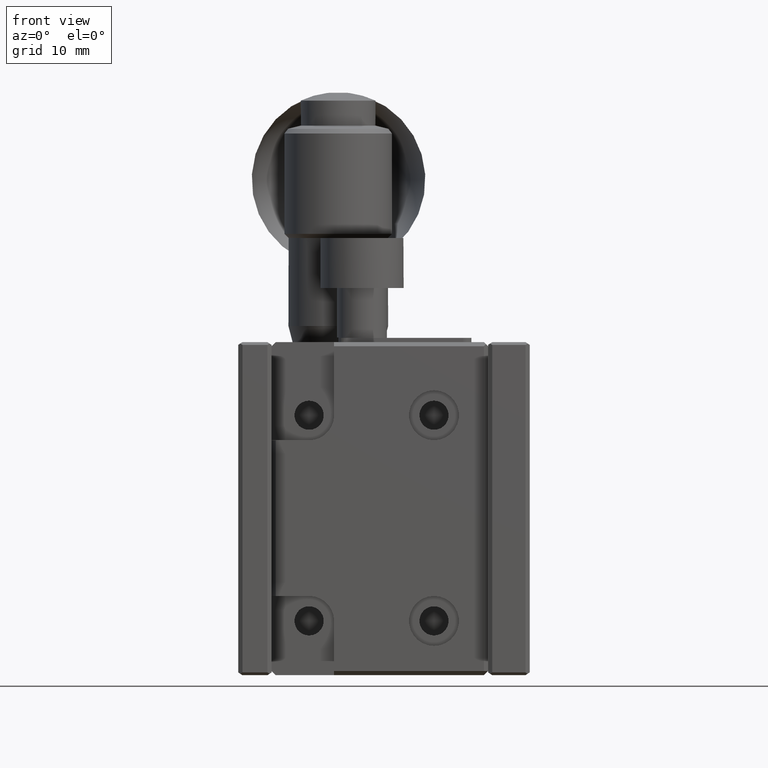
[diagram: clean part render]
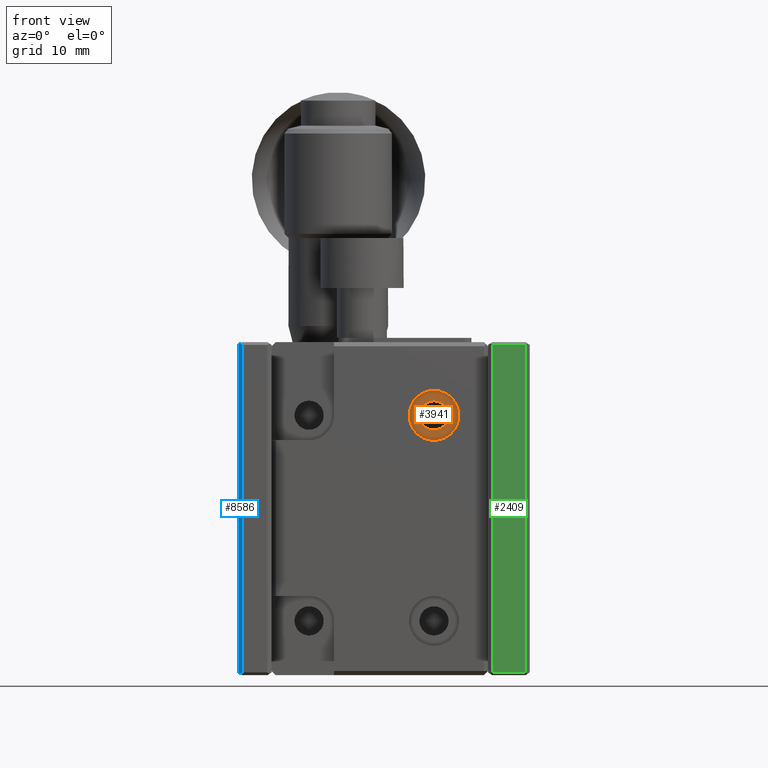
[diagram: same view with three faces highlighted in distinct colors, each labeled with its STEP entity id]
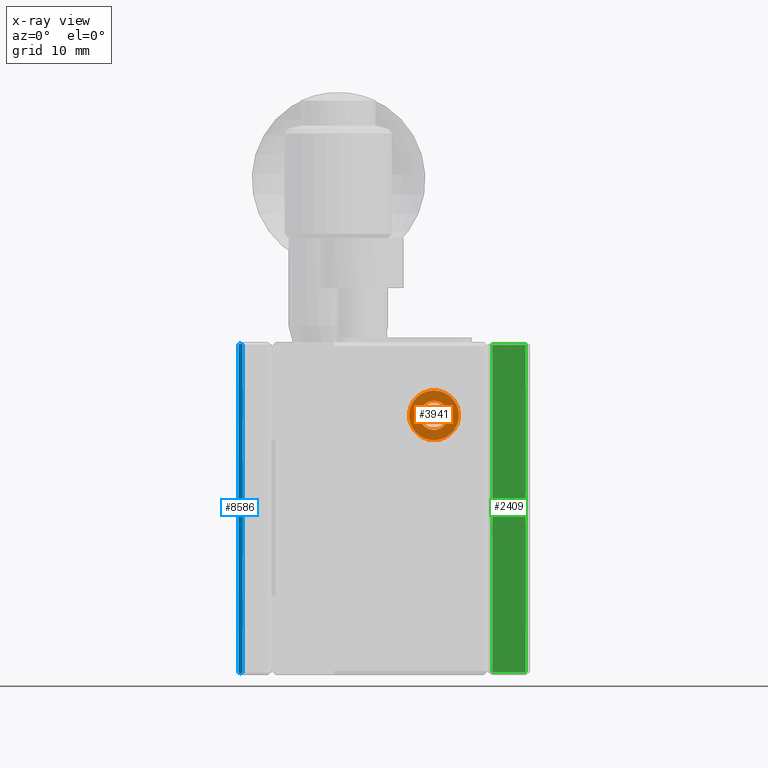
[diagram: x-ray of the same camera — body ghosted, the three highlighted faces saturated]
A machine part, front view with three faces highlighted in distinct colors.
The next image is the same camera in x-ray (body ghosted, the three faces saturated) — at least one of them is partly hidden behind the body in this view.
Their STEP definitions:

[orange] entity #3941 — the highlighted planar face has unit normal (-0, 1, 0).
#478 = DIRECTION ( 'NONE',  ( -0.000000000000000000, 1.000000000000000000, 0.000000000000000000 ) ) ;
#580 = CARTESIAN_POINT ( 'NONE',  ( 11.50000000000020073, -15.50000000000000000, -8.800000000000009592 ) ) ;
#620 = DIRECTION ( 'NONE',  ( 0.000000000000000000, 0.000000000000000000, 1.000000000000000000 ) ) ;
#1832 = PLANE ( 'NONE',  #7125 ) ;
#1911 = CARTESIAN_POINT ( 'NONE',  ( 11.50000000000020073, -15.50000000000000000, -10.55000000000000959 ) ) ;
#2029 = DIRECTION ( 'NONE',  ( -0.000000000000000000, -1.000000000000000000, -0.000000000000000000 ) ) ;
#2492 = FACE_BOUND ( 'NONE', #8481, .T. ) ;
#3028 = CIRCLE ( 'NONE', #5253, 1.749999999999999778 ) ;
#3074 = EDGE_CURVE ( 'NONE', #5462, #5462, #5552, .T. ) ;
#3892 = CARTESIAN_POINT ( 'NONE',  ( 11.50000000000020073, -15.50000000000000000, -8.800000000000009592 ) ) ;
#3941 = ADVANCED_FACE ( 'NONE', ( #7815, #2492 ), #1832, .F. ) ;
#5101 = VERTEX_POINT ( 'NONE', #1911 ) ;
#5147 = DIRECTION ( 'NONE',  ( 0.000000000000000000, -0.000000000000000000, 1.000000000000000000 ) ) ;
#5253 = AXIS2_PLACEMENT_3D ( 'NONE', #580, #8001, #5336 ) ;
#5312 = ORIENTED_EDGE ( 'NONE', *, *, #7792, .F. ) ;
#5336 = DIRECTION ( 'NONE',  ( 0.000000000000000000, 0.000000000000000000, -1.000000000000000000 ) ) ;
#5462 = VERTEX_POINT ( 'NONE', #8130 ) ;
#5552 = CIRCLE ( 'NONE', #6386, 3.000000000000000000 ) ;
#6172 = EDGE_LOOP ( 'NONE', ( #8518 ) ) ;
#6386 = AXIS2_PLACEMENT_3D ( 'NONE', #3892, #2029, #620 ) ;
#6460 = CARTESIAN_POINT ( 'NONE',  ( 11.50000000000020073, -15.50000000000000000, -8.800000000000009592 ) ) ;
#7125 = AXIS2_PLACEMENT_3D ( 'NONE', #6460, #478, #5147 ) ;
#7792 = EDGE_CURVE ( 'NONE', #5101, #5101, #3028, .T. ) ;
#7815 = FACE_OUTER_BOUND ( 'NONE', #6172, .T. ) ;
#8001 = DIRECTION ( 'NONE',  ( 0.000000000000000000, -1.000000000000000000, 0.000000000000000000 ) ) ;
#8130 = CARTESIAN_POINT ( 'NONE',  ( 11.50000000000020073, -15.50000000000000000, -5.800000000000008704 ) ) ;
#8481 = EDGE_LOOP ( 'NONE', ( #5312 ) ) ;
#8518 = ORIENTED_EDGE ( 'NONE', *, *, #3074, .T. ) ;

[blue] entity #8586 — the highlighted planar face has unit normal (-0.5547, -0.8321, 0).
#60 = CARTESIAN_POINT ( 'NONE',  ( -12.00000000000000000, -24.91666666666669983, -0.3333333333333465820 ) ) ;
#106 = VECTOR ( 'NONE', #1079, 1000.000000000000227 ) ;
#234 = ORIENTED_EDGE ( 'NONE', *, *, #7655, .F. ) ;
#236 = VERTEX_POINT ( 'NONE', #646 ) ;
#365 = CARTESIAN_POINT ( 'NONE',  ( -11.50000000000000000, -25.24999999999995737, -39.66666666666665009 ) ) ;
#646 = CARTESIAN_POINT ( 'NONE',  ( -11.99999999999997868, -24.91666666666669272, -39.66666666666667851 ) ) ;
#693 = EDGE_CURVE ( 'NONE', #5581, #1733, #1062, .T. ) ;
#757 = CARTESIAN_POINT ( 'NONE',  ( -11.99999999999996980, -24.91666666666665719, -39.66666666666669983 ) ) ;
#934 = CARTESIAN_POINT ( 'NONE',  ( -11.49999999999998401, -25.24999999999997868, -12.33333333333330017 ) ) ;
#1014 = DIRECTION ( 'NONE',  ( 0.7276068751090404296, -0.4850712500726903076, -0.4850712500725792298 ) ) ;
#1028 = VECTOR ( 'NONE', #1014, 1000.000000000000114 ) ;
#1062 = LINE ( 'NONE', #934, #3310 ) ;
#1073 = VERTEX_POINT ( 'NONE', #3536 ) ;
#1079 = DIRECTION ( 'NONE',  ( 0.7276068751089658226, -0.4850712500726909737, -0.4850712500726905296 ) ) ;
#1499 = DIRECTION ( 'NONE',  ( 0.000000000000000000, 0.000000000000000000, 1.000000000000000000 ) ) ;
#1579 = DIRECTION ( 'NONE',  ( 0.8320502943378437211, -0.5547001962252289253, 0.000000000000000000 ) ) ;
#1719 = DIRECTION ( 'NONE',  ( 0.000000000000000000, 0.000000000000000000, 1.000000000000000000 ) ) ;
#1733 = VERTEX_POINT ( 'NONE', #6587 ) ;
#2120 = LINE ( 'NONE', #757, #1028 ) ;
#2170 = VERTEX_POINT ( 'NONE', #5733 ) ;
#2241 = PLANE ( 'NONE',  #2500 ) ;
#2285 = FACE_OUTER_BOUND ( 'NONE', #5740, .T. ) ;
#2427 = LINE ( 'NONE', #365, #4709 ) ;
#2500 = AXIS2_PLACEMENT_3D ( 'NONE', #8265, #5685, #1579 ) ;
#2897 = LINE ( 'NONE', #7528, #6688 ) ;
#3150 = EDGE_CURVE ( 'NONE', #2170, #1073, #6651, .T. ) ;
#3182 = CARTESIAN_POINT ( 'NONE',  ( -11.75000000000000000, -25.08333333333330373, -39.83333333333330728 ) ) ;
#3310 = VECTOR ( 'NONE', #1719, 1000.000000000000000 ) ;
#3388 = ORIENTED_EDGE ( 'NONE', *, *, #3150, .F. ) ;
#3536 = CARTESIAN_POINT ( 'NONE',  ( -11.75000000000000000, -25.08333333333329662, -0.1666666666666798691 ) ) ;
#3688 = CARTESIAN_POINT ( 'NONE',  ( -11.75000000000000000, -25.08333333333330017, -0.1666666666666800356 ) ) ;
#4228 = ORIENTED_EDGE ( 'NONE', *, *, #693, .T. ) ;
#4511 = EDGE_CURVE ( 'NONE', #236, #7864, #2120, .T. ) ;
#4680 = DIRECTION ( 'NONE',  ( 0.7276068751090680742, -0.4850712500725168908, 0.4850712500727114573 ) ) ;
#4709 = VECTOR ( 'NONE', #5696, 1000.000000000000000 ) ;
#5581 = VERTEX_POINT ( 'NONE', #8052 ) ;
#5676 = EDGE_CURVE ( 'NONE', #236, #2170, #2897, .T. ) ;
#5685 = DIRECTION ( 'NONE',  ( -0.5547001962252290364, -0.8320502943378438321, 0.000000000000000000 ) ) ;
#5696 = DIRECTION ( 'NONE',  ( -0.7276068751090226661, 0.4850712500726481191, -0.4850712500726481191 ) ) ;
#5733 = CARTESIAN_POINT ( 'NONE',  ( -11.99999999999998401, -24.91666666666667851, -0.3333333333333444171 ) ) ;
#5740 = EDGE_LOOP ( 'NONE', ( #5794, #3388, #8353, #7510, #234, #4228 ) ) ;
#5794 = ORIENTED_EDGE ( 'NONE', *, *, #7161, .F. ) ;
#6587 = CARTESIAN_POINT ( 'NONE',  ( -11.49999999999999645, -25.24999999999998934, -0.3333333333333539095 ) ) ;
#6651 = LINE ( 'NONE', #60, #6949 ) ;
#6688 = VECTOR ( 'NONE', #1499, 1000.000000000000000 ) ;
#6949 = VECTOR ( 'NONE', #4680, 999.9999999999998863 ) ;
#6978 = LINE ( 'NONE', #3688, #106 ) ;
#7161 = EDGE_CURVE ( 'NONE', #1073, #1733, #6978, .T. ) ;
#7510 = ORIENTED_EDGE ( 'NONE', *, *, #4511, .T. ) ;
#7528 = CARTESIAN_POINT ( 'NONE',  ( -12.00000000000000000, -24.91666666666670338, -12.33333333333330017 ) ) ;
#7655 = EDGE_CURVE ( 'NONE', #5581, #7864, #2427, .T. ) ;
#7864 = VERTEX_POINT ( 'NONE', #3182 ) ;
#8052 = CARTESIAN_POINT ( 'NONE',  ( -11.49999999999999822, -25.24999999999997513, -39.66666666666667140 ) ) ;
#8265 = CARTESIAN_POINT ( 'NONE',  ( -11.75000000000000000, -25.08333333333330017, -12.33333333333330017 ) ) ;
#8353 = ORIENTED_EDGE ( 'NONE', *, *, #5676, .F. ) ;
#8586 = ADVANCED_FACE ( 'NONE', ( #2285 ), #2241, .T. ) ;

[green] entity #2409 — the highlighted planar face has unit normal (0, -1, 0).
#33 = LINE ( 'NONE', #4656, #1483 ) ;
#398 = DIRECTION ( 'NONE',  ( 0.000000000000000000, -0.000000000000000000, -1.000000000000000000 ) ) ;
#571 = CARTESIAN_POINT ( 'NONE',  ( 17.00000000000019895, -25.25000000000000000, -39.66666666666669983 ) ) ;
#1092 = CARTESIAN_POINT ( 'NONE',  ( 22.50000000000019540, -25.24999999999998934, -0.3333333333333540760 ) ) ;
#1438 = CARTESIAN_POINT ( 'NONE',  ( 17.00000000000019895, -25.25000000000000000, -39.00000000000000000 ) ) ;
#1483 = VECTOR ( 'NONE', #2654, 1000.000000000000000 ) ;
#1519 = VECTOR ( 'NONE', #8483, 1000.000000000000000 ) ;
#1532 = DIRECTION ( 'NONE',  ( 0.000000000000000000, -1.000000000000000000, 0.000000000000000000 ) ) ;
#2020 = LINE ( 'NONE', #4675, #7937 ) ;
#2298 = EDGE_CURVE ( 'NONE', #6979, #8530, #7901, .T. ) ;
#2409 = ADVANCED_FACE ( 'NONE', ( #6814 ), #4720, .T. ) ;
#2565 = VERTEX_POINT ( 'NONE', #1092 ) ;
#2654 = DIRECTION ( 'NONE',  ( -1.000000000000000000, -0.000000000000000000, -0.000000000000000000 ) ) ;
#2803 = DIRECTION ( 'NONE',  ( 0.000000000000000000, -0.000000000000000000, -1.000000000000000000 ) ) ;
#3604 = EDGE_CURVE ( 'NONE', #8530, #7002, #3880, .T. ) ;
#3880 = LINE ( 'NONE', #571, #6846 ) ;
#4042 = CARTESIAN_POINT ( 'NONE',  ( 22.50000000000019540, -25.24999999999997513, -39.66666666666667140 ) ) ;
#4656 = CARTESIAN_POINT ( 'NONE',  ( 17.00000000000019895, -25.25000000000000000, -0.3333333333333451942 ) ) ;
#4675 = CARTESIAN_POINT ( 'NONE',  ( 22.50000000000018474, -25.24999999999997868, -12.33333333333330017 ) ) ;
#4720 = PLANE ( 'NONE',  #7880 ) ;
#4779 = ORIENTED_EDGE ( 'NONE', *, *, #2298, .T. ) ;
#4786 = EDGE_LOOP ( 'NONE', ( #4779, #6760, #5079, #7825 ) ) ;
#5079 = ORIENTED_EDGE ( 'NONE', *, *, #8482, .F. ) ;
#5814 = CARTESIAN_POINT ( 'NONE',  ( 18.50000000000019895, -25.25000000000000000, -39.00000000000000000 ) ) ;
#5815 = DIRECTION ( 'NONE',  ( 1.000000000000000000, 0.000000000000000000, 0.000000000000000000 ) ) ;
#5975 = CARTESIAN_POINT ( 'NONE',  ( 18.50000000000020250, -25.24999999999998934, -0.3333333333333544646 ) ) ;
#6760 = ORIENTED_EDGE ( 'NONE', *, *, #3604, .T. ) ;
#6814 = FACE_OUTER_BOUND ( 'NONE', #4786, .T. ) ;
#6846 = VECTOR ( 'NONE', #5815, 1000.000000000000000 ) ;
#6979 = VERTEX_POINT ( 'NONE', #5975 ) ;
#7002 = VERTEX_POINT ( 'NONE', #4042 ) ;
#7825 = ORIENTED_EDGE ( 'NONE', *, *, #8071, .T. ) ;
#7880 = AXIS2_PLACEMENT_3D ( 'NONE', #1438, #1532, #2803 ) ;
#7901 = LINE ( 'NONE', #5814, #1519 ) ;
#7937 = VECTOR ( 'NONE', #398, 1000.000000000000000 ) ;
#8071 = EDGE_CURVE ( 'NONE', #2565, #6979, #33, .T. ) ;
#8397 = CARTESIAN_POINT ( 'NONE',  ( 18.50000000000020606, -25.24999999999998224, -39.66666666666668561 ) ) ;
#8482 = EDGE_CURVE ( 'NONE', #2565, #7002, #2020, .T. ) ;
#8483 = DIRECTION ( 'NONE',  ( 0.000000000000000000, -0.000000000000000000, -1.000000000000000000 ) ) ;
#8530 = VERTEX_POINT ( 'NONE', #8397 ) ;